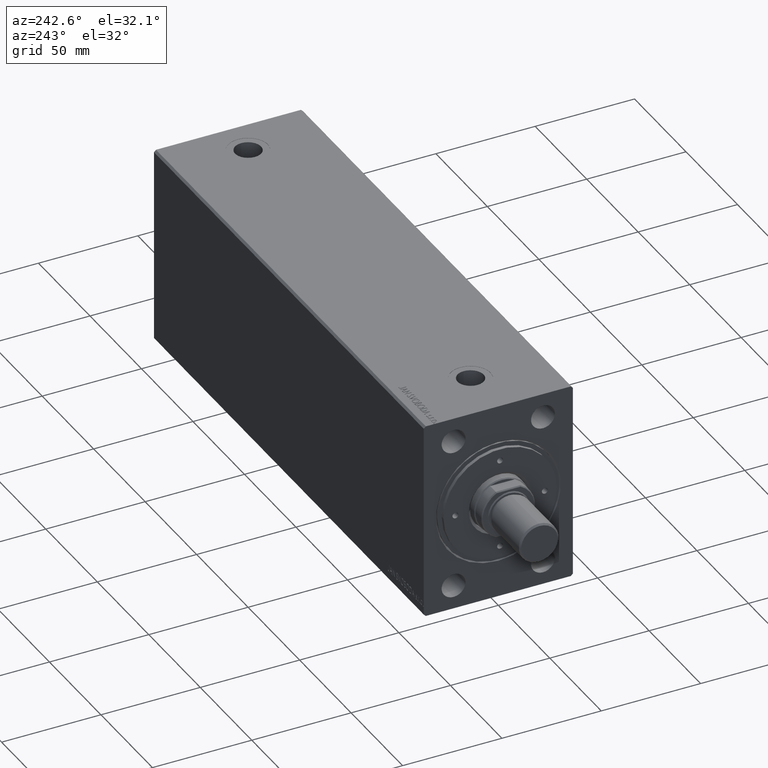
[diagram: clean part render]
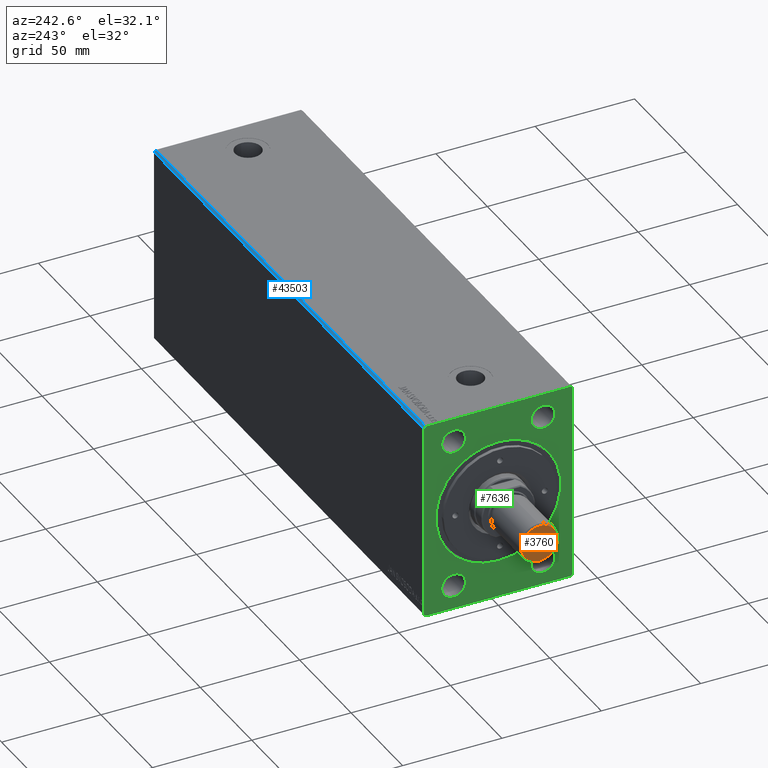
[diagram: same view with three faces highlighted in distinct colors, each labeled with its STEP entity id]
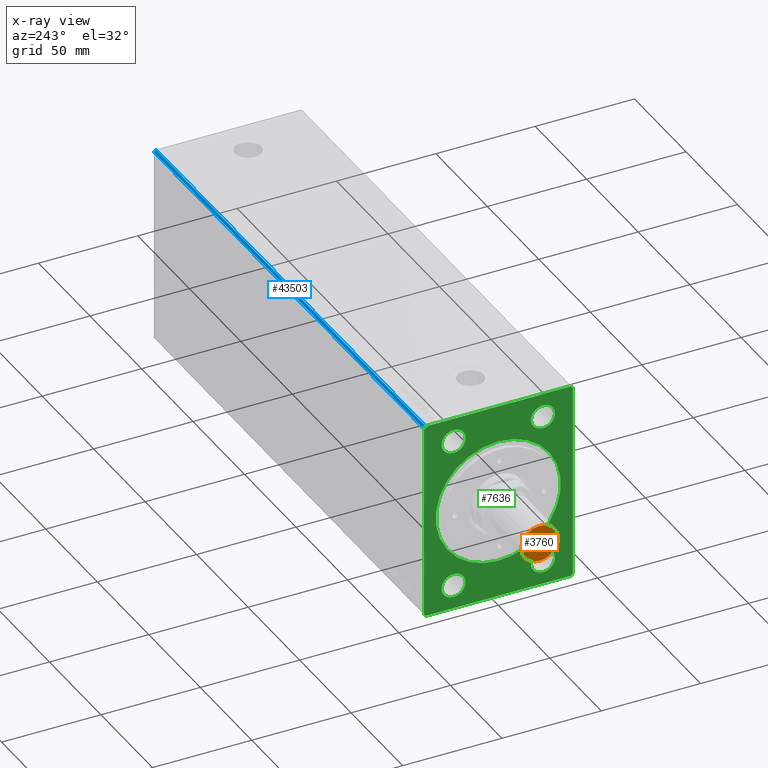
[diagram: x-ray of the same camera — body ghosted, the three highlighted faces saturated]
A machine part, auxiliary view with three faces highlighted in distinct colors.
The next image is the same camera in x-ray (body ghosted, the three faces saturated) — at least one of them is partly hidden behind the body in this view.
Their STEP definitions:

[orange] entity #3760 — the highlighted planar face has unit normal (1, -0, -0).
#188 = DIRECTION ( 'NONE',  ( 1.000000000000000000, 0.000000000000000000, 0.000000000000000000 ) ) ;
#3760 = ADVANCED_FACE ( 'NONE', ( #13435 ), #16155, .F. ) ;
#4725 = VERTEX_POINT ( 'NONE', #24729 ) ;
#6235 = AXIS2_PLACEMENT_3D ( 'NONE', #30079, #36613, #29862 ) ;
#7596 = CARTESIAN_POINT ( 'NONE',  ( 0.000000000000000000, 0.000000000000000000, 0.000000000000000000 ) ) ;
#7867 = CARTESIAN_POINT ( 'NONE',  ( 9.199999999999999289, 0.000000000000000000, 0.000000000000000000 ) ) ;
#10640 = CIRCLE ( 'NONE', #29991, 9.199999999999999289 ) ;
#13435 = FACE_OUTER_BOUND ( 'NONE', #42240, .T. ) ;
#14312 = VERTEX_POINT ( 'NONE', #7867 ) ;
#14955 = EDGE_CURVE ( 'NONE', #14312, #4725, #35831, .T. ) ;
#16155 = PLANE ( 'NONE',  #6235 ) ;
#16464 = AXIS2_PLACEMENT_3D ( 'NONE', #23530, #34303, #26682 ) ;
#23530 = CARTESIAN_POINT ( 'NONE',  ( 0.000000000000000000, 0.000000000000000000, 0.000000000000000000 ) ) ;
#24729 = CARTESIAN_POINT ( 'NONE',  ( -9.199999999999999289, 1.175660927181458842E-15, 0.000000000000000000 ) ) ;
#26682 = DIRECTION ( 'NONE',  ( 1.000000000000000000, 0.000000000000000000, 0.000000000000000000 ) ) ;
#29862 = DIRECTION ( 'NONE',  ( 1.000000000000000000, 0.000000000000000000, -0.000000000000000000 ) ) ;
#29991 = AXIS2_PLACEMENT_3D ( 'NONE', #7596, #30977, #188 ) ;
#30079 = CARTESIAN_POINT ( 'NONE',  ( 0.000000000000000000, 0.000000000000000000, 0.000000000000000000 ) ) ;
#30977 = DIRECTION ( 'NONE',  ( -0.000000000000000000, -0.000000000000000000, -1.000000000000000000 ) ) ;
#34303 = DIRECTION ( 'NONE',  ( -0.000000000000000000, -0.000000000000000000, -1.000000000000000000 ) ) ;
#35074 = ORIENTED_EDGE ( 'NONE', *, *, #43336, .T. ) ;
#35831 = CIRCLE ( 'NONE', #16464, 9.199999999999999289 ) ;
#36613 = DIRECTION ( 'NONE',  ( 0.000000000000000000, 0.000000000000000000, 1.000000000000000000 ) ) ;
#39019 = ORIENTED_EDGE ( 'NONE', *, *, #14955, .T. ) ;
#42240 = EDGE_LOOP ( 'NONE', ( #39019, #35074 ) ) ;
#43336 = EDGE_CURVE ( 'NONE', #4725, #14312, #10640, .T. ) ;

[blue] entity #43503 — the highlighted planar face has unit normal (0, -0.7071, -0.7071).
#425 = VECTOR ( 'NONE', #36322, 1000.000000000000000 ) ;
#1045 = VERTEX_POINT ( 'NONE', #13690 ) ;
#1044 = CARTESIAN_POINT ( 'NONE',  ( 262.0000000000000000, 37.50000000000000711, 49.00000000000000000 ) ) ;
#2074 = ORIENTED_EDGE ( 'NONE', *, *, #38147, .T. ) ;
#2840 = PLANE ( 'NONE',  #37176 ) ;
#3367 = DIRECTION ( 'NONE',  ( 0.000000000000000000, -0.7071067811865474617, 0.7071067811865474617 ) ) ;
#4935 = DIRECTION ( 'NONE',  ( -1.000000000000000000, -0.000000000000000000, -0.000000000000000000 ) ) ;
#6427 = FACE_OUTER_BOUND ( 'NONE', #35221, .T. ) ;
#6591 = LINE ( 'NONE', #31088, #23418 ) ;
#10388 = VERTEX_POINT ( 'NONE', #30907 ) ;
#13690 = CARTESIAN_POINT ( 'NONE',  ( 262.0000000000000000, 36.50000000000000711, 50.00000000000000000 ) ) ;
#14908 = ORIENTED_EDGE ( 'NONE', *, *, #28068, .T. ) ;
#16873 = CARTESIAN_POINT ( 'NONE',  ( 262.0000000000000000, 37.50000000000000711, 49.00000000000000000 ) ) ;
#18130 = LINE ( 'NONE', #1044, #425 ) ;
#18924 = EDGE_CURVE ( 'NONE', #10388, #1045, #22965, .T. ) ;
#22728 = VERTEX_POINT ( 'NONE', #38159 ) ;
#22965 = LINE ( 'NONE', #16873, #39545 ) ;
#23418 = VECTOR ( 'NONE', #27953, 1000.000000000000114 ) ;
#27953 = DIRECTION ( 'NONE',  ( 0.000000000000000000, -0.7071067811865474617, 0.7071067811865474617 ) ) ;
#28068 = EDGE_CURVE ( 'NONE', #10388, #39610, #18130, .T. ) ;
#29824 = CARTESIAN_POINT ( 'NONE',  ( 262.0000000000000000, 37.50000000000000711, 49.00000000000000000 ) ) ;
#30044 = DIRECTION ( 'NONE',  ( 0.000000000000000000, 0.7071067811865474617, -0.7071067811865474617 ) ) ;
#30907 = CARTESIAN_POINT ( 'NONE',  ( 262.0000000000000000, 37.50000000000000711, 49.00000000000000000 ) ) ;
#31088 = CARTESIAN_POINT ( 'NONE',  ( 0.000000000000000000, 37.50000000000000711, 49.00000000000000000 ) ) ;
#34315 = VECTOR ( 'NONE', #4935, 1000.000000000000000 ) ;
#35204 = ORIENTED_EDGE ( 'NONE', *, *, #18924, .F. ) ;
#35221 = EDGE_LOOP ( 'NONE', ( #2074, #36712, #35204, #14908 ) ) ;
#36322 = DIRECTION ( 'NONE',  ( -1.000000000000000000, -0.000000000000000000, -0.000000000000000000 ) ) ;
#36712 = ORIENTED_EDGE ( 'NONE', *, *, #43065, .F. ) ;
#37176 = AXIS2_PLACEMENT_3D ( 'NONE', #29824, #43331, #30044 ) ;
#38147 = EDGE_CURVE ( 'NONE', #39610, #22728, #6591, .T. ) ;
#38159 = CARTESIAN_POINT ( 'NONE',  ( 0.000000000000000000, 36.50000000000000711, 50.00000000000000000 ) ) ;
#39545 = VECTOR ( 'NONE', #3367, 1000.000000000000114 ) ;
#39577 = LINE ( 'NONE', #42942, #34315 ) ;
#39610 = VERTEX_POINT ( 'NONE', #43784 ) ;
#42942 = CARTESIAN_POINT ( 'NONE',  ( 262.0000000000000000, 36.50000000000000711, 50.00000000000000000 ) ) ;
#43065 = EDGE_CURVE ( 'NONE', #1045, #22728, #39577, .T. ) ;
#43331 = DIRECTION ( 'NONE',  ( 0.000000000000000000, -0.7071067811865475727, -0.7071067811865475727 ) ) ;
#43503 = ADVANCED_FACE ( 'NONE', ( #6427 ), #2840, .F. ) ;
#43784 = CARTESIAN_POINT ( 'NONE',  ( 0.000000000000000000, 37.50000000000000711, 49.00000000000000000 ) ) ;

[green] entity #7636 — the highlighted planar face has unit normal (1, 0, 0).
#74 = EDGE_CURVE ( 'NONE', #18914, #29264, #378, .T. ) ;
#145 = DIRECTION ( 'NONE',  ( -1.000000000000000000, -0.000000000000000000, -0.000000000000000000 ) ) ;
#378 = CIRCLE ( 'NONE', #11159, 5.999999999999998224 ) ;
#500 = EDGE_CURVE ( 'NONE', #22728, #4053, #16691, .T. ) ;
#903 = CARTESIAN_POINT ( 'NONE',  ( 2.449293598294703949E-16, -22.50000000000000000, 44.00000000000000000 ) ) ;
#1191 = ORIENTED_EDGE ( 'NONE', *, *, #10645, .F. ) ;
#1273 = AXIS2_PLACEMENT_3D ( 'NONE', #6423, #12731, #13611 ) ;
#1485 = ORIENTED_EDGE ( 'NONE', *, *, #74, .F. ) ;
#1646 = DIRECTION ( 'NONE',  ( 1.000000000000000000, 0.000000000000000000, 0.000000000000000000 ) ) ;
#1823 = CARTESIAN_POINT ( 'NONE',  ( 2.449293598294703949E-16, -22.50000000000000000, -32.00000000000000711 ) ) ;
#1863 = EDGE_CURVE ( 'NONE', #22124, #39610, #34373, .T. ) ;
#2355 = LINE ( 'NONE', #9316, #23075 ) ;
#2469 = EDGE_CURVE ( 'NONE', #39760, #7113, #6205, .T. ) ;
#2849 = CARTESIAN_POINT ( 'NONE',  ( 2.449293598294703949E-16, -22.50000000000000000, 32.00000000000000000 ) ) ;
#3055 = FACE_BOUND ( 'NONE', #44390, .T. ) ;
#3113 = ORIENTED_EDGE ( 'NONE', *, *, #39529, .F. ) ;
#3265 = VECTOR ( 'NONE', #37865, 1000.000000000000000 ) ;
#3352 = AXIS2_PLACEMENT_3D ( 'NONE', #40641, #10484, #23540 ) ;
#4053 = VERTEX_POINT ( 'NONE', #34500 ) ;
#4315 = CIRCLE ( 'NONE', #22985, 5.999999999999998224 ) ;
#4403 = ORIENTED_EDGE ( 'NONE', *, *, #21076, .F. ) ;
#4444 = CIRCLE ( 'NONE', #28837, 31.45000000000000639 ) ;
#4573 = ORIENTED_EDGE ( 'NONE', *, *, #21880, .T. ) ;
#4713 = ORIENTED_EDGE ( 'NONE', *, *, #1863, .F. ) ;
#4897 = ORIENTED_EDGE ( 'NONE', *, *, #12955, .F. ) ;
#4960 = CARTESIAN_POINT ( 'NONE',  ( 0.000000000000000000, 37.50000000000000711, -49.00000000000000000 ) ) ;
#5415 = ORIENTED_EDGE ( 'NONE', *, *, #16130, .F. ) ;
#5488 = LINE ( 'NONE', #12455, #14375 ) ;
#5836 = VERTEX_POINT ( 'NONE', #31196 ) ;
#6067 = ORIENTED_EDGE ( 'NONE', *, *, #13919, .F. ) ;
#6205 = CIRCLE ( 'NONE', #42108, 5.999999999999998224 ) ;
#6423 = CARTESIAN_POINT ( 'NONE',  ( 0.000000000000000000, 0.000000000000000000, 0.000000000000000000 ) ) ;
#6591 = LINE ( 'NONE', #31088, #23418 ) ;
#6644 = DIRECTION ( 'NONE',  ( -1.000000000000000000, -0.000000000000000000, -0.000000000000000000 ) ) ;
#6890 = DIRECTION ( 'NONE',  ( 0.000000000000000000, 0.7071067811865474617, 0.7071067811865474617 ) ) ;
#7026 = CARTESIAN_POINT ( 'NONE',  ( 2.449293598294703949E-16, 22.50000000000000000, 32.00000000000000000 ) ) ;
#7113 = VERTEX_POINT ( 'NONE', #7026 ) ;
#7116 = LINE ( 'NONE', #37692, #14844 ) ;
#7636 = ADVANCED_FACE ( 'NONE', ( #36790, #43763, #3055, #33409, #12952, #9791 ), #26672, .F. ) ;
#8120 = EDGE_LOOP ( 'NONE', ( #27662, #4403 ) ) ;
#9039 = VECTOR ( 'NONE', #15028, 1000.000000000000000 ) ;
#9250 = LINE ( 'NONE', #22986, #11773 ) ;
#9316 = CARTESIAN_POINT ( 'NONE',  ( 0.000000000000000000, -36.50000000000001421, 49.99999999999998579 ) ) ;
#9791 = FACE_OUTER_BOUND ( 'NONE', #28154, .T. ) ;
#9918 = CARTESIAN_POINT ( 'NONE',  ( 0.000000000000000000, 36.50000000000000711, 50.00000000000000000 ) ) ;
#10414 = CARTESIAN_POINT ( 'NONE',  ( 2.449293598294703949E-16, 22.50000000000000000, 38.00000000000000000 ) ) ;
#10424 = LINE ( 'NONE', #24150, #3265 ) ;
#10457 = DIRECTION ( 'NONE',  ( -1.000000000000000000, -0.000000000000000000, -0.000000000000000000 ) ) ;
#10484 = DIRECTION ( 'NONE',  ( -1.000000000000000000, -0.000000000000000000, -0.000000000000000000 ) ) ;
#10623 = CARTESIAN_POINT ( 'NONE',  ( 2.449293598294703949E-16, -22.50000000000000000, -38.00000000000000711 ) ) ;
#10645 = EDGE_CURVE ( 'NONE', #18856, #21323, #12156, .T. ) ;
#11159 = AXIS2_PLACEMENT_3D ( 'NONE', #38358, #145, #41961 ) ;
#11773 = VECTOR ( 'NONE', #40731, 1000.000000000000114 ) ;
#11814 = CARTESIAN_POINT ( 'NONE',  ( 0.000000000000000000, 36.50000000000000711, -50.00000000000000000 ) ) ;
#12156 = CIRCLE ( 'NONE', #21505, 5.999999999999998224 ) ;
#12455 = CARTESIAN_POINT ( 'NONE',  ( 0.000000000000000000, -36.50000000000000711, -50.00000000000000000 ) ) ;
#12694 = CIRCLE ( 'NONE', #3352, 5.999999999999998224 ) ;
#12731 = DIRECTION ( 'NONE',  ( 1.000000000000000000, 0.000000000000000000, 0.000000000000000000 ) ) ;
#12952 = FACE_BOUND ( 'NONE', #30132, .T. ) ;
#12955 = EDGE_CURVE ( 'NONE', #36460, #39677, #5488, .T. ) ;
#13583 = VERTEX_POINT ( 'NONE', #903 ) ;
#13611 = DIRECTION ( 'NONE',  ( 0.000000000000000000, 0.000000000000000000, -1.000000000000000000 ) ) ;
#13683 = AXIS2_PLACEMENT_3D ( 'NONE', #41332, #17717, #41561 ) ;
#13919 = EDGE_CURVE ( 'NONE', #21323, #18856, #4315, .T. ) ;
#14253 = CARTESIAN_POINT ( 'NONE',  ( 0.000000000000000000, 0.000000000000000000, 0.000000000000000000 ) ) ;
#14375 = VECTOR ( 'NONE', #43699, 1000.000000000000000 ) ;
#14844 = VECTOR ( 'NONE', #6890, 1000.000000000000114 ) ;
#15028 = DIRECTION ( 'NONE',  ( 0.000000000000000000, 0.000000000000000000, 1.000000000000000000 ) ) ;
#16130 = EDGE_CURVE ( 'NONE', #29264, #18914, #25805, .T. ) ;
#16691 = LINE ( 'NONE', #9918, #29837 ) ;
#16738 = EDGE_LOOP ( 'NONE', ( #1191, #6067 ) ) ;
#17323 = AXIS2_PLACEMENT_3D ( 'NONE', #10414, #24141, #37856 ) ;
#17357 = CARTESIAN_POINT ( 'NONE',  ( 0.000000000000000000, -37.50000000000001421, -49.00000000000000000 ) ) ;
#17717 = DIRECTION ( 'NONE',  ( 1.000000000000000000, 0.000000000000000000, 0.000000000000000000 ) ) ;
#17823 = DIRECTION ( 'NONE',  ( 0.000000000000000000, 0.000000000000000000, 1.000000000000000000 ) ) ;
#18230 = CIRCLE ( 'NONE', #38331, 5.999999999999998224 ) ;
#18856 = VERTEX_POINT ( 'NONE', #1823 ) ;
#18914 = VERTEX_POINT ( 'NONE', #23615 ) ;
#19929 = EDGE_CURVE ( 'NONE', #21141, #31718, #35961, .T. ) ;
#20365 = DIRECTION ( 'NONE',  ( 0.000000000000000000, 0.000000000000000000, 1.000000000000000000 ) ) ;
#20508 = CARTESIAN_POINT ( 'NONE',  ( 2.449293598294703949E-16, 22.50000000000000000, -32.00000000000000000 ) ) ;
#20943 = EDGE_CURVE ( 'NONE', #4053, #5836, #2355, .T. ) ;
#21076 = EDGE_CURVE ( 'NONE', #7113, #39760, #41012, .T. ) ;
#21141 = VERTEX_POINT ( 'NONE', #28397 ) ;
#21323 = VERTEX_POINT ( 'NONE', #34424 ) ;
#21505 = AXIS2_PLACEMENT_3D ( 'NONE', #10623, #38278, #17823 ) ;
#21567 = CARTESIAN_POINT ( 'NONE',  ( 0.000000000000000000, 37.50000000000000711, -49.00000000000000000 ) ) ;
#21880 = EDGE_CURVE ( 'NONE', #31718, #21141, #4444, .T. ) ;
#22124 = VERTEX_POINT ( 'NONE', #4960 ) ;
#22513 = CARTESIAN_POINT ( 'NONE',  ( 2.449293598294703949E-16, 22.50000000000000000, 38.00000000000000000 ) ) ;
#22728 = VERTEX_POINT ( 'NONE', #38159 ) ;
#22985 = AXIS2_PLACEMENT_3D ( 'NONE', #41732, #10457, #37896 ) ;
#22986 = CARTESIAN_POINT ( 'NONE',  ( 0.000000000000000000, -37.50000000000001421, -49.00000000000000000 ) ) ;
#23052 = DIRECTION ( 'NONE',  ( 0.000000000000000000, -0.7071067811865474617, -0.7071067811865474617 ) ) ;
#23075 = VECTOR ( 'NONE', #23052, 1000.000000000000114 ) ;
#23215 = VERTEX_POINT ( 'NONE', #2849 ) ;
#23383 = DIRECTION ( 'NONE',  ( 0.000000000000000000, 0.000000000000000000, 1.000000000000000000 ) ) ;
#23418 = VECTOR ( 'NONE', #27953, 1000.000000000000114 ) ;
#23540 = DIRECTION ( 'NONE',  ( 0.000000000000000000, 0.000000000000000000, 1.000000000000000000 ) ) ;
#23615 = CARTESIAN_POINT ( 'NONE',  ( 2.449293598294703949E-16, 22.50000000000000000, -44.00000000000000000 ) ) ;
#24141 = DIRECTION ( 'NONE',  ( -1.000000000000000000, -0.000000000000000000, -0.000000000000000000 ) ) ;
#24150 = CARTESIAN_POINT ( 'NONE',  ( 0.000000000000000000, -37.50000000000001421, 48.99999999999998579 ) ) ;
#24201 = EDGE_CURVE ( 'NONE', #5836, #27857, #10424, .T. ) ;
#25765 = DIRECTION ( 'NONE',  ( 0.000000000000000000, 0.000000000000000000, 1.000000000000000000 ) ) ;
#25768 = CARTESIAN_POINT ( 'NONE',  ( 2.449293598294703949E-16, 22.50000000000000000, 44.00000000000000000 ) ) ;
#25805 = CIRCLE ( 'NONE', #29397, 5.999999999999998224 ) ;
#26582 = DIRECTION ( 'NONE',  ( 0.000000000000000000, -1.000000000000000000, -1.901066822988281457E-16 ) ) ;
#26672 = PLANE ( 'NONE',  #1273 ) ;
#27419 = ORIENTED_EDGE ( 'NONE', *, *, #33642, .F. ) ;
#27662 = ORIENTED_EDGE ( 'NONE', *, *, #2469, .F. ) ;
#27857 = VERTEX_POINT ( 'NONE', #17357 ) ;
#27953 = DIRECTION ( 'NONE',  ( 0.000000000000000000, -0.7071067811865474617, 0.7071067811865474617 ) ) ;
#28154 = EDGE_LOOP ( 'NONE', ( #37751, #4713, #35633, #4897, #29726, #29906, #36926, #38052 ) ) ;
#28397 = CARTESIAN_POINT ( 'NONE',  ( 0.000000000000000000, 3.851514183318426405E-15, -31.45000000000000639 ) ) ;
#28837 = AXIS2_PLACEMENT_3D ( 'NONE', #14253, #1646, #31983 ) ;
#29264 = VERTEX_POINT ( 'NONE', #20508 ) ;
#29397 = AXIS2_PLACEMENT_3D ( 'NONE', #39929, #33170, #25765 ) ;
#29726 = ORIENTED_EDGE ( 'NONE', *, *, #34179, .F. ) ;
#29837 = VECTOR ( 'NONE', #26582, 1000.000000000000000 ) ;
#29906 = ORIENTED_EDGE ( 'NONE', *, *, #24201, .F. ) ;
#29952 = ORIENTED_EDGE ( 'NONE', *, *, #19929, .T. ) ;
#30132 = EDGE_LOOP ( 'NONE', ( #4573, #29952 ) ) ;
#31088 = CARTESIAN_POINT ( 'NONE',  ( 0.000000000000000000, 37.50000000000000711, 49.00000000000000000 ) ) ;
#31196 = CARTESIAN_POINT ( 'NONE',  ( 0.000000000000000000, -37.50000000000001421, 48.99999999999998579 ) ) ;
#31509 = EDGE_LOOP ( 'NONE', ( #27419, #3113 ) ) ;
#31718 = VERTEX_POINT ( 'NONE', #43054 ) ;
#31983 = DIRECTION ( 'NONE',  ( 0.000000000000000000, 0.000000000000000000, -1.000000000000000000 ) ) ;
#33170 = DIRECTION ( 'NONE',  ( -1.000000000000000000, -0.000000000000000000, -0.000000000000000000 ) ) ;
#33409 = FACE_BOUND ( 'NONE', #31509, .T. ) ;
#33642 = EDGE_CURVE ( 'NONE', #13583, #23215, #18230, .T. ) ;
#34179 = EDGE_CURVE ( 'NONE', #27857, #36460, #9250, .T. ) ;
#34373 = LINE ( 'NONE', #21567, #9039 ) ;
#34424 = CARTESIAN_POINT ( 'NONE',  ( 2.449293598294703949E-16, -22.50000000000000000, -44.00000000000000711 ) ) ;
#34500 = CARTESIAN_POINT ( 'NONE',  ( 0.000000000000000000, -36.50000000000001421, 49.99999999999998579 ) ) ;
#35633 = ORIENTED_EDGE ( 'NONE', *, *, #39585, .F. ) ;
#35961 = CIRCLE ( 'NONE', #13683, 31.45000000000000639 ) ;
#36460 = VERTEX_POINT ( 'NONE', #38007 ) ;
#36790 = FACE_BOUND ( 'NONE', #8120, .T. ) ;
#36926 = ORIENTED_EDGE ( 'NONE', *, *, #20943, .F. ) ;
#37448 = CARTESIAN_POINT ( 'NONE',  ( 2.449293598294703949E-16, -22.50000000000000000, 38.00000000000000000 ) ) ;
#37692 = CARTESIAN_POINT ( 'NONE',  ( 0.000000000000000000, 36.50000000000000711, -50.00000000000000000 ) ) ;
#37751 = ORIENTED_EDGE ( 'NONE', *, *, #38147, .F. ) ;
#37856 = DIRECTION ( 'NONE',  ( 0.000000000000000000, 0.000000000000000000, 1.000000000000000000 ) ) ;
#37865 = DIRECTION ( 'NONE',  ( 0.000000000000000000, 0.000000000000000000, -1.000000000000000000 ) ) ;
#37896 = DIRECTION ( 'NONE',  ( 0.000000000000000000, 0.000000000000000000, 1.000000000000000000 ) ) ;
#38007 = CARTESIAN_POINT ( 'NONE',  ( 0.000000000000000000, -36.50000000000000711, -50.00000000000000000 ) ) ;
#38052 = ORIENTED_EDGE ( 'NONE', *, *, #500, .F. ) ;
#38147 = EDGE_CURVE ( 'NONE', #39610, #22728, #6591, .T. ) ;
#38159 = CARTESIAN_POINT ( 'NONE',  ( 0.000000000000000000, 36.50000000000000711, 50.00000000000000000 ) ) ;
#38278 = DIRECTION ( 'NONE',  ( -1.000000000000000000, -0.000000000000000000, -0.000000000000000000 ) ) ;
#38331 = AXIS2_PLACEMENT_3D ( 'NONE', #37448, #6644, #20365 ) ;
#38358 = CARTESIAN_POINT ( 'NONE',  ( 2.449293598294703949E-16, 22.50000000000000000, -38.00000000000000000 ) ) ;
#39529 = EDGE_CURVE ( 'NONE', #23215, #13583, #12694, .T. ) ;
#39585 = EDGE_CURVE ( 'NONE', #39677, #22124, #7116, .T. ) ;
#39610 = VERTEX_POINT ( 'NONE', #43784 ) ;
#39677 = VERTEX_POINT ( 'NONE', #11814 ) ;
#39760 = VERTEX_POINT ( 'NONE', #25768 ) ;
#39929 = CARTESIAN_POINT ( 'NONE',  ( 2.449293598294703949E-16, 22.50000000000000000, -38.00000000000000000 ) ) ;
#40641 = CARTESIAN_POINT ( 'NONE',  ( 2.449293598294703949E-16, -22.50000000000000000, 38.00000000000000000 ) ) ;
#40731 = DIRECTION ( 'NONE',  ( 0.000000000000000000, 0.7071067811865500152, -0.7071067811865451302 ) ) ;
#41012 = CIRCLE ( 'NONE', #17323, 5.999999999999998224 ) ;
#41332 = CARTESIAN_POINT ( 'NONE',  ( 0.000000000000000000, 0.000000000000000000, 0.000000000000000000 ) ) ;
#41561 = DIRECTION ( 'NONE',  ( 0.000000000000000000, 0.000000000000000000, -1.000000000000000000 ) ) ;
#41732 = CARTESIAN_POINT ( 'NONE',  ( 2.449293598294703949E-16, -22.50000000000000000, -38.00000000000000711 ) ) ;
#41961 = DIRECTION ( 'NONE',  ( 0.000000000000000000, 0.000000000000000000, 1.000000000000000000 ) ) ;
#42108 = AXIS2_PLACEMENT_3D ( 'NONE', #22513, #44293, #23383 ) ;
#43054 = CARTESIAN_POINT ( 'NONE',  ( 0.000000000000000000, 0.000000000000000000, 31.45000000000000639 ) ) ;
#43699 = DIRECTION ( 'NONE',  ( 0.000000000000000000, 1.000000000000000000, 0.000000000000000000 ) ) ;
#43763 = FACE_BOUND ( 'NONE', #16738, .T. ) ;
#43784 = CARTESIAN_POINT ( 'NONE',  ( 0.000000000000000000, 37.50000000000000711, 49.00000000000000000 ) ) ;
#44293 = DIRECTION ( 'NONE',  ( -1.000000000000000000, -0.000000000000000000, -0.000000000000000000 ) ) ;
#44390 = EDGE_LOOP ( 'NONE', ( #5415, #1485 ) ) ;